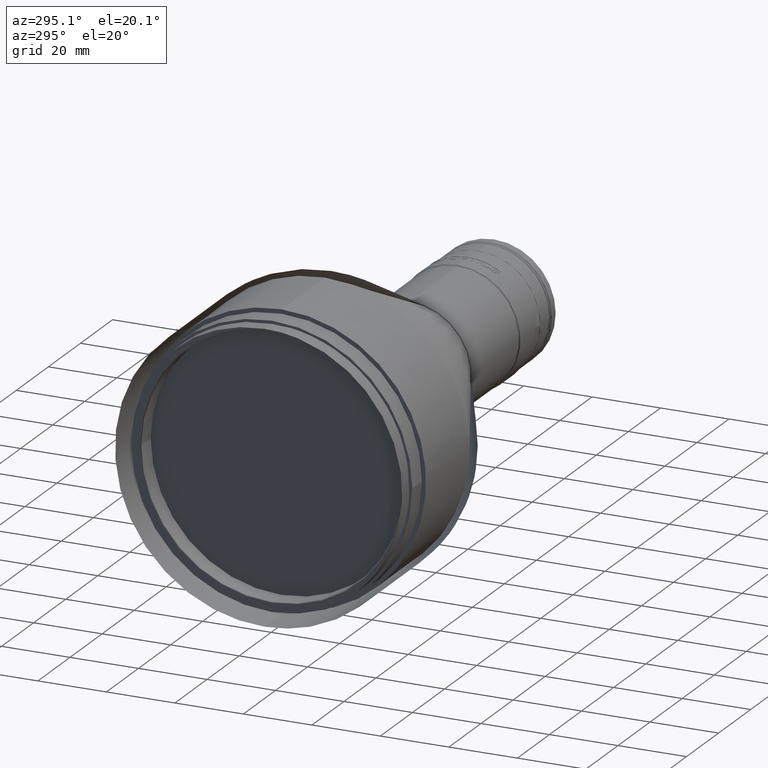
[diagram: clean part render]
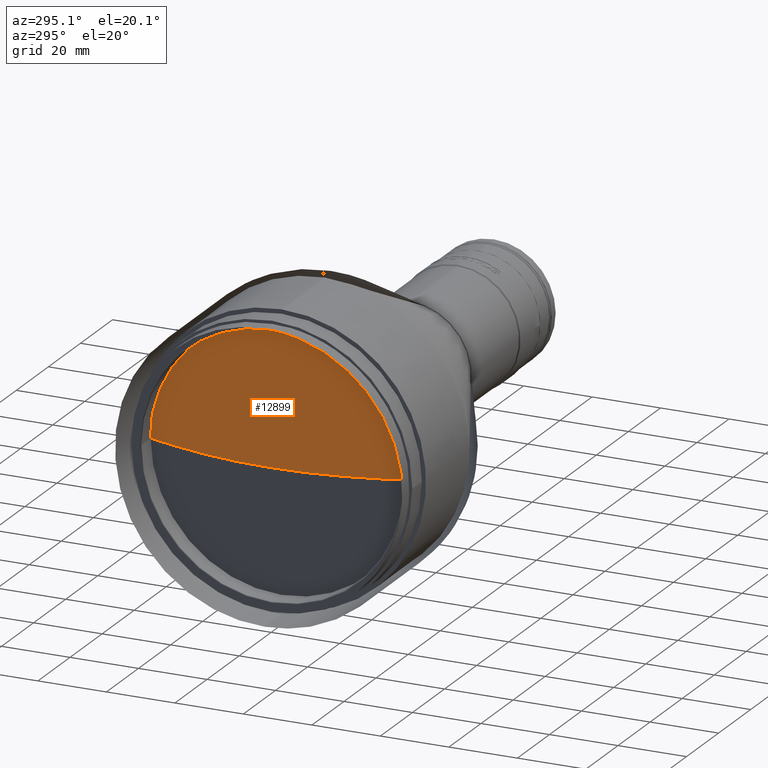
[diagram: same view with one face highlighted and labeled with its STEP entity id]
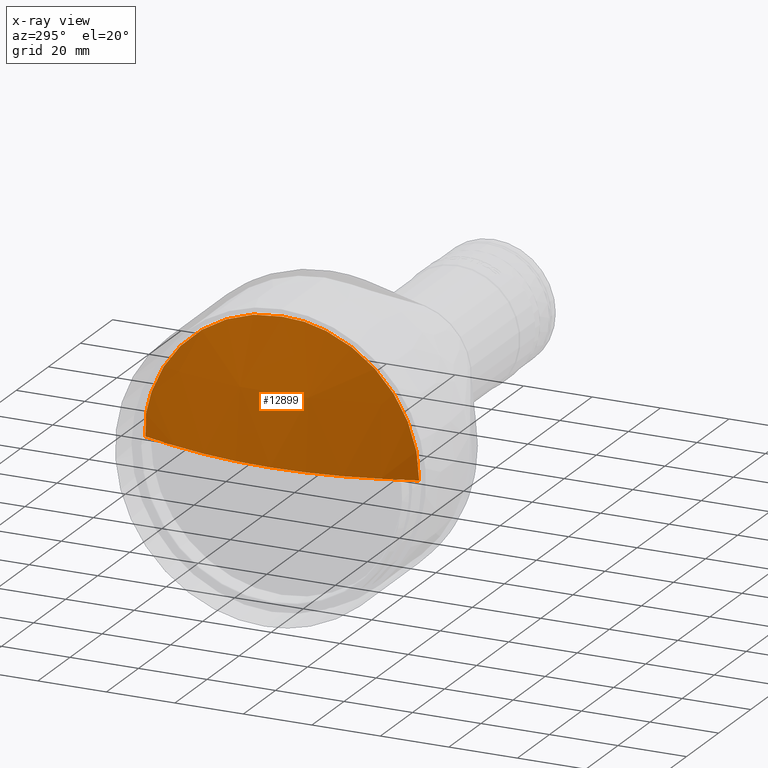
[diagram: x-ray of the same camera — body ghosted, the highlighted face saturated]
A machine part, auxiliary view. The second image highlights one B-rep face of the part: STEP entity #12899.
The next image is the same camera in x-ray: the body ghosted, the highlighted face saturated — about 0% of this face is hidden behind the body in this view.
In plain terms, the highlighted spherical surface has radius 103.562 mm.
Its self-contained STEP definition (entity closure, byte-faithful):
#339 = B_SPLINE_CURVE_WITH_KNOTS ( 'NONE', 3,
 ( #14051, #11340, #2920, #12518, #1463, #13965, #11159, #6995, #16692, #15154, #1552, #15238, #11073, #4018, #2737, #8445, #4361, #8260 ),
 .UNSPECIFIED., .F., .F.,
 ( 4, 2, 2, 2, 2, 2, 2, 2, 4 ),
 ( 0.5000000000000000000, 0.5625000000000000000, 0.6250000000000000000, 0.6875000000000000000, 0.7500000000000000000, 0.8125000000000000000, 0.8750000000000000000, 0.9375000000000000000, 1.000000000000000000 ),
 .UNSPECIFIED. ) ;
#555 = CARTESIAN_POINT ( 'NONE',  ( -13.04761029356762059, 3.865579381571490308E-16, -124.1614151906740062 ) ) ;
#742 = CARTESIAN_POINT ( 'NONE',  ( -13.39841295411110167, 5.262102636016777524, -124.1705479234524034 ) ) ;
#923 = CARTESIAN_POINT ( 'NONE',  ( -13.39841295411109989, 36.13308500930754974, -146.2967366946509173 ) ) ;
#1009 = CARTESIAN_POINT ( 'NONE',  ( -13.39841295411110167, 31.96332654829897635, -139.5898255567552155 ) ) ;
#1463 = CARTESIAN_POINT ( 'NONE',  ( -13.39841295411110167, -38.14682940441515058, -151.1583457244724400 ) ) ;
#1552 = CARTESIAN_POINT ( 'NONE',  ( -13.39841295411109989, -24.52158963384484380, -132.1480886423010759 ) ) ;
#1786 = CARTESIAN_POINT ( 'NONE',  ( -13.04761029356760460, 39.94999999992618456, -164.1114151906000131 ) ) ;
#2261 = SPHERICAL_SURFACE ( 'NONE', #3819, 103.5620100000000008 ) ;
#2737 = CARTESIAN_POINT ( 'NONE',  ( -13.39841295411110167, -10.42315925404094834, -125.1971459135240394 ) ) ;
#2761 = CARTESIAN_POINT ( 'NONE',  ( 82.95359704591010086, -3.552713678800499667E-14, -164.1114151905999847 ) ) ;
#2920 = CARTESIAN_POINT ( 'NONE',  ( -13.39841295411110167, -39.94086726714762392, -158.8493125545833209 ) ) ;
#3345 = ORIENTED_EDGE ( 'NONE', *, *, #11148, .F. ) ;
#3612 = CARTESIAN_POINT ( 'NONE',  ( 82.95359704591010086, -3.552713678800499667E-14, -164.1114151905999847 ) ) ;
#3752 = CARTESIAN_POINT ( 'NONE',  ( -13.39841295411110167, 12.95306946612756072, -125.9645857861848555 ) ) ;
#3819 = AXIS2_PLACEMENT_3D ( 'NONE', #5250, #17653, #17382 ) ;
#4018 = CARTESIAN_POINT ( 'NONE',  ( -13.39841295411109989, -12.95306946612769572, -125.9645857861849123 ) ) ;
#4041 = DIRECTION ( 'NONE',  ( 1.000000000000000000, 0.000000000000000000, 2.680092402187724571E-16 ) ) ;
#4361 = CARTESIAN_POINT ( 'NONE',  ( -13.39841295411110167, -2.631083847374993123, -123.9114151906999979 ) ) ;
#4498 = EDGE_CURVE ( 'NONE', #7764, #14609, #16447, .T. ) ;
#5032 = CIRCLE ( 'NONE', #7926, 103.5620100000000008 ) ;
#5199 = CARTESIAN_POINT ( 'NONE',  ( -13.39841295411110167, 26.56523537327929674, -133.8252653566222818 ) ) ;
#5250 = CARTESIAN_POINT ( 'NONE',  ( 82.95359704591010086, -3.552713678800499667E-14, -164.1114151905999847 ) ) ;
#6077 = CARTESIAN_POINT ( 'NONE',  ( -13.04761029356762059, -39.94999999992614903, -164.1114151905999847 ) ) ;
#6278 = CARTESIAN_POINT ( 'NONE',  ( -13.39841295411109989, 17.81467849594902120, -127.9783301812923924 ) ) ;
#6551 = CARTESIAN_POINT ( 'NONE',  ( -13.39841295411110167, 38.91426927707598082, -153.6882559365591874 ) ) ;
#6817 = VERTEX_POINT ( 'NONE', #555 ) ;
#6995 = CARTESIAN_POINT ( 'NONE',  ( -13.39841295411109989, -31.96332654829905806, -139.5898255567553292 ) ) ;
#7764 = VERTEX_POINT ( 'NONE', #1786 ) ;
#7926 = AXIS2_PLACEMENT_3D ( 'NONE', #3612, #10309, #15935 ) ;
#8260 = CARTESIAN_POINT ( 'NONE',  ( -13.39841295411109989, -7.732823536610050681E-14, -123.9114151906999979 ) ) ;
#8445 = CARTESIAN_POINT ( 'NONE',  ( -13.39841295411109989, -5.262102636016928514, -124.1705479234524319 ) ) ;
#9086 = CARTESIAN_POINT ( 'NONE',  ( -13.39841295411109989, 39.94086726714759550, -158.8493125545831504 ) ) ;
#9175 = CARTESIAN_POINT ( 'NONE',  ( -13.39841295411109989, 24.52158963384471946, -132.1480886423009906 ) ) ;
#9267 = CARTESIAN_POINT ( 'NONE',  ( -13.39841295411109989, 34.88683028065935332, -143.9651580897798340 ) ) ;
#9348 = ORIENTED_EDGE ( 'NONE', *, *, #14868, .F. ) ;
#9351 = CARTESIAN_POINT ( 'NONE',  ( -13.39841295411109989, 30.28614983397767801, -137.5461798173206773 ) ) ;
#10070 = AXIS2_PLACEMENT_3D ( 'NONE', #2761, #13818, #4041 ) ;
#10309 = DIRECTION ( 'NONE',  ( 2.744414619840230537E-16, 1.224646799147351975E-16, -1.000000000000000000 ) ) ;
#10393 = VERTEX_POINT ( 'NONE', #6077 ) ;
#10442 = CARTESIAN_POINT ( 'NONE',  ( -13.39841295411109989, 38.14682940441510084, -151.1583457244724116 ) ) ;
#10484 = CARTESIAN_POINT ( 'NONE',  ( -20.60841295408989637, 1.268268840597658820E-14, -164.1114151906000131 ) ) ;
#10592 = ORIENTED_EDGE ( 'NONE', *, *, #4498, .F. ) ;
#10625 = CARTESIAN_POINT ( 'NONE',  ( -13.39841295411109989, -8.433885104708042619E-14, -123.9114151906999979 ) ) ;
#10676 = FACE_OUTER_BOUND ( 'NONE', #15326, .T. ) ;
#11073 = CARTESIAN_POINT ( 'NONE',  ( -13.39841295411110167, -17.81467849594914199, -127.9783301812924492 ) ) ;
#11148 = EDGE_CURVE ( 'NONE', #10393, #6817, #339, .T. ) ;
#11159 = CARTESIAN_POINT ( 'NONE',  ( -13.39841295411110167, -34.88683028065941016, -143.9651580897799761 ) ) ;
#11340 = CARTESIAN_POINT ( 'NONE',  ( -13.39841295411110167, -40.19999999990000106, -161.4803313432252310 ) ) ;
#11896 = CARTESIAN_POINT ( 'NONE',  ( -13.39841295411110167, 40.19999999990000106, -161.4803313432250604 ) ) ;
#12229 = B_SPLINE_CURVE_WITH_KNOTS ( 'NONE', 3,
 ( #10625, #13528, #742, #15974, #3752, #6278, #17330, #9175, #5199, #9351, #1009, #9267, #923, #10442, #6551, #9086, #11896, #17603 ),
 .UNSPECIFIED., .F., .F.,
 ( 4, 2, 2, 2, 2, 2, 2, 2, 4 ),
 ( 0.000000000000000000, 0.06250000000000008327, 0.1250000000000001665, 0.1875000000000002498, 0.2500000000000003331, 0.3125000000000004441, 0.3750000000000004996, 0.4375000000000005551, 0.5000000000000006661 ),
 .UNSPECIFIED. ) ;
#12518 = CARTESIAN_POINT ( 'NONE',  ( -13.39841295411109989, -38.91426927707600214, -153.6882559365592158 ) ) ;
#12899 = ADVANCED_FACE ( 'NONE', ( #10676 ), #2261, .F. ) ;
#13528 = CARTESIAN_POINT ( 'NONE',  ( -13.39841295411110167, 2.631083847374828810, -123.9114151906999837 ) ) ;
#13818 = DIRECTION ( 'NONE',  ( -2.744414619840230044E-16, 1.129771740838917688E-31, 1.000000000000000000 ) ) ;
#13965 = CARTESIAN_POINT ( 'NONE',  ( -13.39841295411109989, -36.13308500930762790, -146.2967366946510026 ) ) ;
#14051 = CARTESIAN_POINT ( 'NONE',  ( -13.39841295411109989, -40.19999999989999395, -164.1114151906001268 ) ) ;
#14609 = VERTEX_POINT ( 'NONE', #10484 ) ;
#14868 = EDGE_CURVE ( 'NONE', #6817, #7764, #12229, .T. ) ;
#15154 = CARTESIAN_POINT ( 'NONE',  ( -13.39841295411109989, -26.56523537327938200, -133.8252653566223955 ) ) ;
#15238 = CARTESIAN_POINT ( 'NONE',  ( -13.39841295411109989, -20.14625710082023957, -129.2245849099407167 ) ) ;
#15326 = EDGE_LOOP ( 'NONE', ( #3345, #15971, #10592, #9348 ) ) ;
#15935 = DIRECTION ( 'NONE',  ( -1.000000000000000000, 0.000000000000000000, -2.680092402187724571E-16 ) ) ;
#15971 = ORIENTED_EDGE ( 'NONE', *, *, #16327, .T. ) ;
#15974 = CARTESIAN_POINT ( 'NONE',  ( -13.39841295411109989, 10.42315925404080268, -125.1971459135239542 ) ) ;
#16327 = EDGE_CURVE ( 'NONE', #10393, #14609, #5032, .T. ) ;
#16447 = CIRCLE ( 'NONE', #10070, 103.5620099999999866 ) ;
#16692 = CARTESIAN_POINT ( 'NONE',  ( -13.39841295411110167, -30.28614983397775617, -137.5461798173207910 ) ) ;
#17330 = CARTESIAN_POINT ( 'NONE',  ( -13.39841295411110167, 20.14625710082011167, -129.2245849099406314 ) ) ;
#17382 = DIRECTION ( 'NONE',  ( 4.020138603281586857E-16, 1.000000000000000000, 0.000000000000000000 ) ) ;
#17603 = CARTESIAN_POINT ( 'NONE',  ( -13.39841295411109989, 40.19999999989999395, -164.1114151906000131 ) ) ;
#17653 = DIRECTION ( 'NONE',  ( 2.744414619840230044E-16, -1.103292715663006774E-31, -1.000000000000000000 ) ) ;